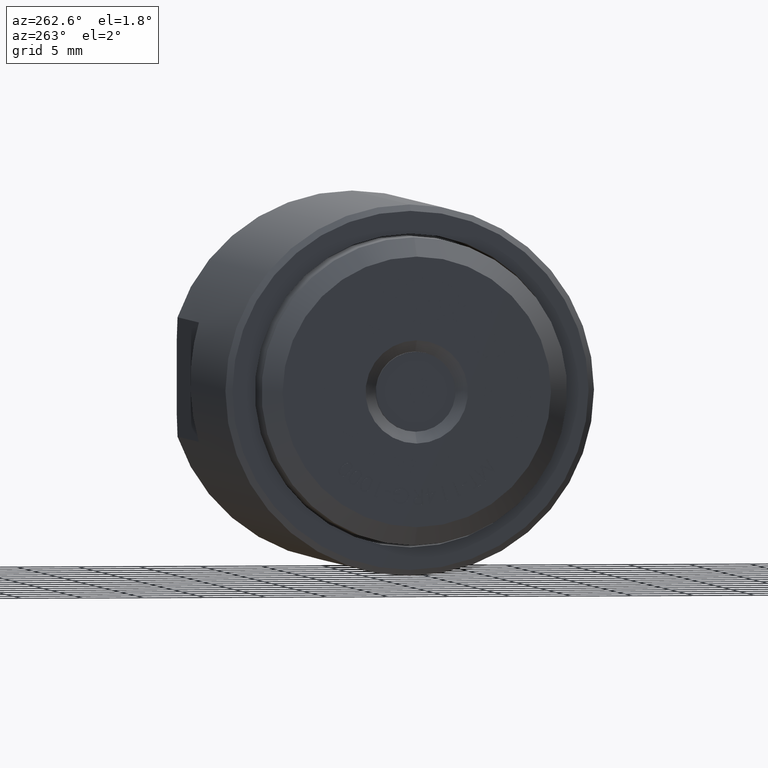
[diagram: clean part render]
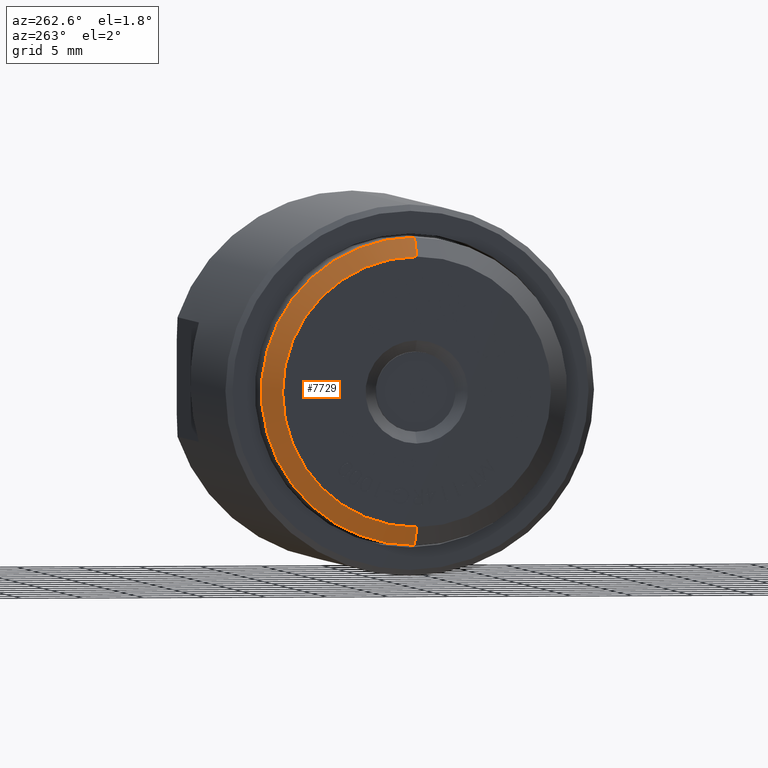
[diagram: same view with one face highlighted and labeled with its STEP entity id]
A machine part, auxiliary view. The second image highlights one B-rep face of the part: STEP entity #7729.
In plain terms, the highlighted conical surface has half-angle 45 deg.
Its self-contained STEP definition (entity closure, byte-faithful):
#805 = EDGE_CURVE ( 'NONE', #2904, #6871, #4536, .T. ) ;
#885 = DIRECTION ( 'NONE',  ( 0.7071067811865471286, 8.659560562354937789E-17, 0.7071067811865479058 ) ) ;
#956 = CARTESIAN_POINT ( 'NONE',  ( -0.3150000000000000577, 0.0000000000000000000, 0.4925000000000000488 ) ) ;
#981 = CARTESIAN_POINT ( 'NONE',  ( -0.3150000000000000577, 0.0000000000000000000, 0.0000000000000000000 ) ) ;
#1106 = DIRECTION ( 'NONE',  ( 0.0000000000000000000, 0.0000000000000000000, -1.000000000000000000 ) ) ;
#1542 = CONICAL_SURFACE ( 'NONE', #11872, 0.4925000000000000488, 0.7853981633974488341 ) ;
#1695 = EDGE_LOOP ( 'NONE', ( #2510, #3370, #8498, #6753 ) ) ;
#2510 = ORIENTED_EDGE ( 'NONE', *, *, #10055, .F. ) ;
#2817 = CARTESIAN_POINT ( 'NONE',  ( -0.3150000000000000577, 0.0000000000000000000, -0.4925000000000000488 ) ) ;
#2904 = VERTEX_POINT ( 'NONE', #11628 ) ;
#3234 = VERTEX_POINT ( 'NONE', #956 ) ;
#3370 = ORIENTED_EDGE ( 'NONE', *, *, #11034, .T. ) ;
#4536 = LINE ( 'NONE', #2817, #9641 ) ;
#4665 = CIRCLE ( 'NONE', #5444, 0.4925000000000000488 ) ;
#5257 = DIRECTION ( 'NONE',  ( -1.000000000000000000, -0.0000000000000000000, -0.0000000000000000000 ) ) ;
#5444 = AXIS2_PLACEMENT_3D ( 'NONE', #6168, #5257, #8988 ) ;
#5481 = DIRECTION ( 'NONE',  ( -1.000000000000000000, -0.0000000000000000000, -0.0000000000000000000 ) ) ;
#5580 = CARTESIAN_POINT ( 'NONE',  ( -0.3750000000000000555, 5.663991446056510216E-17, 0.4325000000000000511 ) ) ;
#5797 = FACE_OUTER_BOUND ( 'NONE', #1695, .T. ) ;
#6168 = CARTESIAN_POINT ( 'NONE',  ( -0.3150000000000000577, 0.0000000000000000000, 0.0000000000000000000 ) ) ;
#6445 = CARTESIAN_POINT ( 'NONE',  ( -0.3750000000000000555, 0.0000000000000000000, 0.0000000000000000000 ) ) ;
#6592 = CARTESIAN_POINT ( 'NONE',  ( -0.3150000000000000577, 6.031385485800716598E-17, -0.4925000000000001599 ) ) ;
#6753 = ORIENTED_EDGE ( 'NONE', *, *, #805, .F. ) ;
#6871 = VERTEX_POINT ( 'NONE', #6592 ) ;
#7378 = AXIS2_PLACEMENT_3D ( 'NONE', #6445, #5481, #10172 ) ;
#7574 = EDGE_CURVE ( 'NONE', #3234, #6871, #4665, .T. ) ;
#7688 = DIRECTION ( 'NONE',  ( 1.000000000000000000, 0.0000000000000000000, 0.0000000000000000000 ) ) ;
#7729 = ADVANCED_FACE ( 'NONE', ( #5797 ), #1542, .T. ) ;
#8255 = DIRECTION ( 'NONE',  ( 0.7071067811865471286, 0.0000000000000000000, -0.7071067811865479058 ) ) ;
#8498 = ORIENTED_EDGE ( 'NONE', *, *, #7574, .T. ) ;
#8753 = CIRCLE ( 'NONE', #7378, 0.4325000000000000511 ) ;
#8988 = DIRECTION ( 'NONE',  ( 0.0000000000000000000, 0.0000000000000000000, 1.000000000000000000 ) ) ;
#9248 = LINE ( 'NONE', #11128, #11471 ) ;
#9641 = VECTOR ( 'NONE', #8255, 39.37007874015748143 ) ;
#10055 = EDGE_CURVE ( 'NONE', #11058, #2904, #8753, .T. ) ;
#10172 = DIRECTION ( 'NONE',  ( 0.0000000000000000000, 0.0000000000000000000, 1.000000000000000000 ) ) ;
#11034 = EDGE_CURVE ( 'NONE', #11058, #3234, #9248, .T. ) ;
#11058 = VERTEX_POINT ( 'NONE', #5580 ) ;
#11128 = CARTESIAN_POINT ( 'NONE',  ( -0.3150000000000000577, 6.031385485800715365E-17, 0.4925000000000000488 ) ) ;
#11471 = VECTOR ( 'NONE', #885, 39.37007874015748143 ) ;
#11628 = CARTESIAN_POINT ( 'NONE',  ( -0.3750000000000000555, 0.0000000000000000000, -0.4325000000000000511 ) ) ;
#11872 = AXIS2_PLACEMENT_3D ( 'NONE', #981, #7688, #1106 ) ;